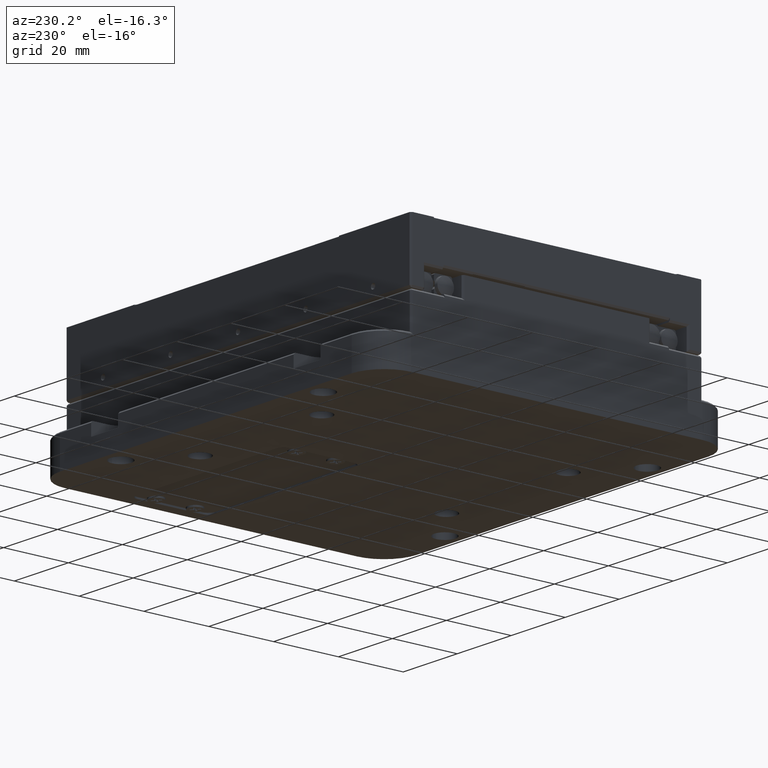
[diagram: clean part render]
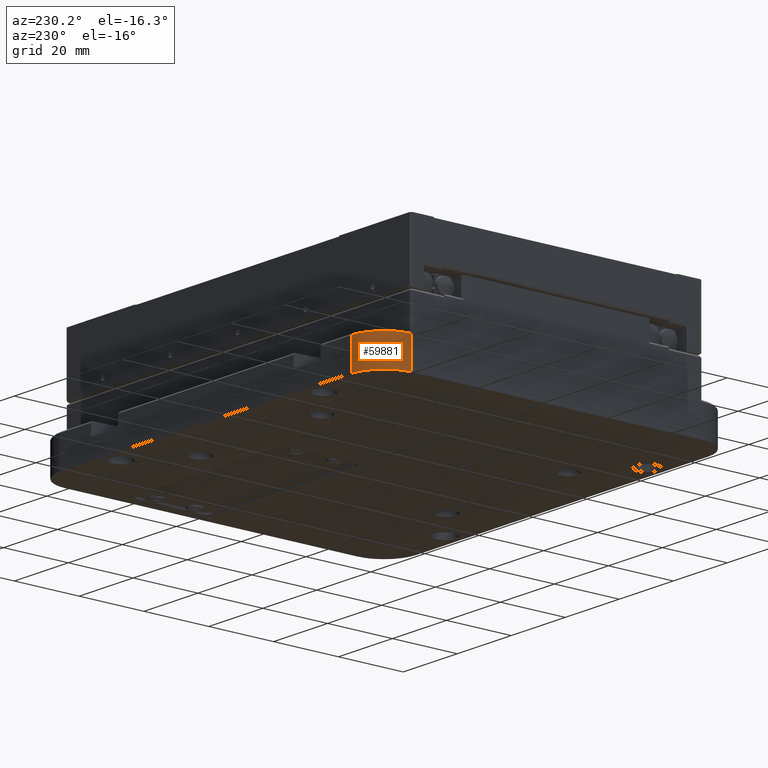
[diagram: same view with one face highlighted and labeled with its STEP entity id]
A machine part, auxiliary view. The second image highlights one B-rep face of the part: STEP entity #59881.
In plain terms, the highlighted cylindrical surface (partial cylindrical patch) has radius 10 mm, axis along (-0, -0, -1).
Its self-contained STEP definition (entity closure, byte-faithful):
#3617 = DIRECTION ( 'NONE',  ( 0.000000000000000000, 0.000000000000000000, 1.000000000000000000 ) ) ;
#4724 = CARTESIAN_POINT ( 'NONE',  ( 40.89232537422615366, 35.15063598315115456, 79.80000005662441254 ) ) ;
#9142 = EDGE_CURVE ( 'NONE', #28280, #31355, #54380, .T. ) ;
#9535 = EDGE_CURVE ( 'NONE', #47597, #13087, #28869, .T. ) ;
#11942 = DIRECTION ( 'NONE',  ( -0.000000000000000000, -0.000000000000000000, -1.000000000000000000 ) ) ;
#12386 = FACE_OUTER_BOUND ( 'NONE', #77640, .T. ) ;
#12841 = DIRECTION ( 'NONE',  ( -1.000000000000000000, 0.000000000000000000, 0.000000000000000000 ) ) ;
#13087 = VERTEX_POINT ( 'NONE', #50458 ) ;
#16276 = CARTESIAN_POINT ( 'NONE',  ( 40.89232537422615366, 35.15063598315115456, 69.80000005662441254 ) ) ;
#17065 = AXIS2_PLACEMENT_3D ( 'NONE', #4724, #11942, #12841 ) ;
#21640 = CARTESIAN_POINT ( 'NONE',  ( 30.89232537422614655, 35.15063598315109061, 79.80000005662441254 ) ) ;
#21726 = ORIENTED_EDGE ( 'NONE', *, *, #9535, .T. ) ;
#22039 = DIRECTION ( 'NONE',  ( -1.000000000000000000, 0.000000000000000000, 0.000000000000000000 ) ) ;
#22626 = ORIENTED_EDGE ( 'NONE', *, *, #9142, .T. ) ;
#26400 = CYLINDRICAL_SURFACE ( 'NONE', #17065, 10.00000000000000178 ) ;
#26403 = CIRCLE ( 'NONE', #63895, 10.00000000000000178 ) ;
#27455 = ORIENTED_EDGE ( 'NONE', *, *, #65275, .T. ) ;
#28280 = VERTEX_POINT ( 'NONE', #80893 ) ;
#28538 = ORIENTED_EDGE ( 'NONE', *, *, #32677, .T. ) ;
#28562 = AXIS2_PLACEMENT_3D ( 'NONE', #16276, #3617, #58270 ) ;
#28869 = LINE ( 'NONE', #21640, #55121 ) ;
#31355 = VERTEX_POINT ( 'NONE', #71466 ) ;
#31439 = CIRCLE ( 'NONE', #28562, 10.00000000000000178 ) ;
#32677 = EDGE_CURVE ( 'NONE', #31355, #47597, #31439, .T. ) ;
#35595 = CARTESIAN_POINT ( 'NONE',  ( 40.89232537422615366, 35.15063598315115456, 79.30000005662442675 ) ) ;
#40841 = CARTESIAN_POINT ( 'NONE',  ( 40.89232537422621760, 45.15063598315115456, 79.80000005662441254 ) ) ;
#42312 = VECTOR ( 'NONE', #68844, 1000.000000000000000 ) ;
#47597 = VERTEX_POINT ( 'NONE', #88337 ) ;
#50458 = CARTESIAN_POINT ( 'NONE',  ( 30.89232537422614655, 35.15063598315110482, 79.30000005662442675 ) ) ;
#54380 = LINE ( 'NONE', #40841, #42312 ) ;
#55121 = VECTOR ( 'NONE', #55509, 1000.000000000000000 ) ;
#55509 = DIRECTION ( 'NONE',  ( 0.000000000000000000, 0.000000000000000000, 1.000000000000000000 ) ) ;
#58270 = DIRECTION ( 'NONE',  ( -1.000000000000000000, 1.318389841742373234E-14, 0.000000000000000000 ) ) ;
#59881 = ADVANCED_FACE ( 'NONE', ( #12386 ), #26400, .T. ) ;
#63146 = DIRECTION ( 'NONE',  ( -0.000000000000000000, -0.000000000000000000, -1.000000000000000000 ) ) ;
#63895 = AXIS2_PLACEMENT_3D ( 'NONE', #35595, #63146, #22039 ) ;
#65275 = EDGE_CURVE ( 'NONE', #13087, #28280, #26403, .T. ) ;
#68844 = DIRECTION ( 'NONE',  ( -0.000000000000000000, -0.000000000000000000, -1.000000000000000000 ) ) ;
#71466 = CARTESIAN_POINT ( 'NONE',  ( 40.89232537422618208, 45.15063598315115456, 69.80000005662441254 ) ) ;
#77640 = EDGE_LOOP ( 'NONE', ( #22626, #28538, #21726, #27455 ) ) ;
#80893 = CARTESIAN_POINT ( 'NONE',  ( 40.89232537422621760, 45.15063598315115456, 79.30000005662442675 ) ) ;
#88337 = CARTESIAN_POINT ( 'NONE',  ( 30.89232537422614655, 35.15063598315111904, 69.80000005662441254 ) ) ;